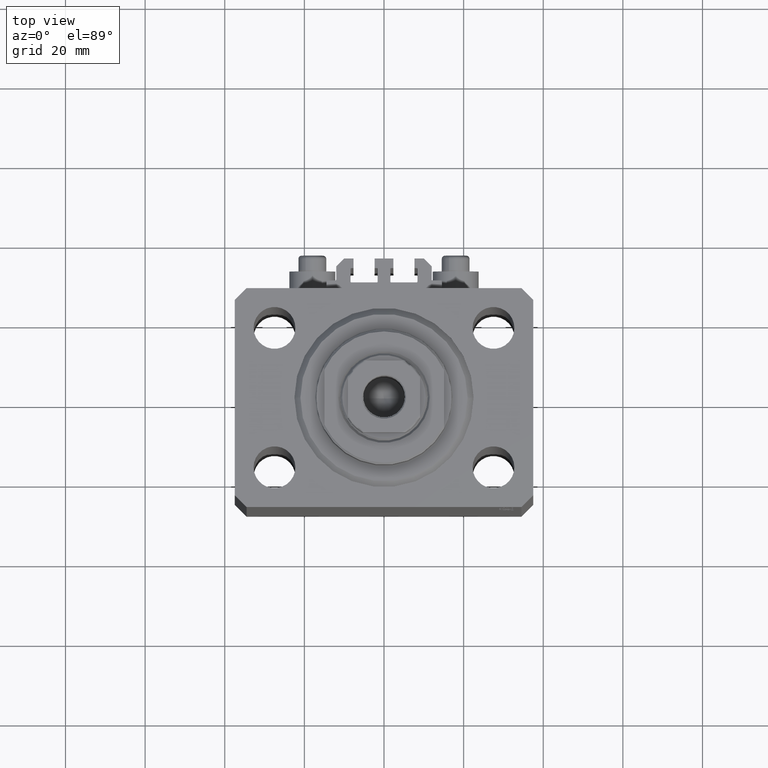
[diagram: clean part render]
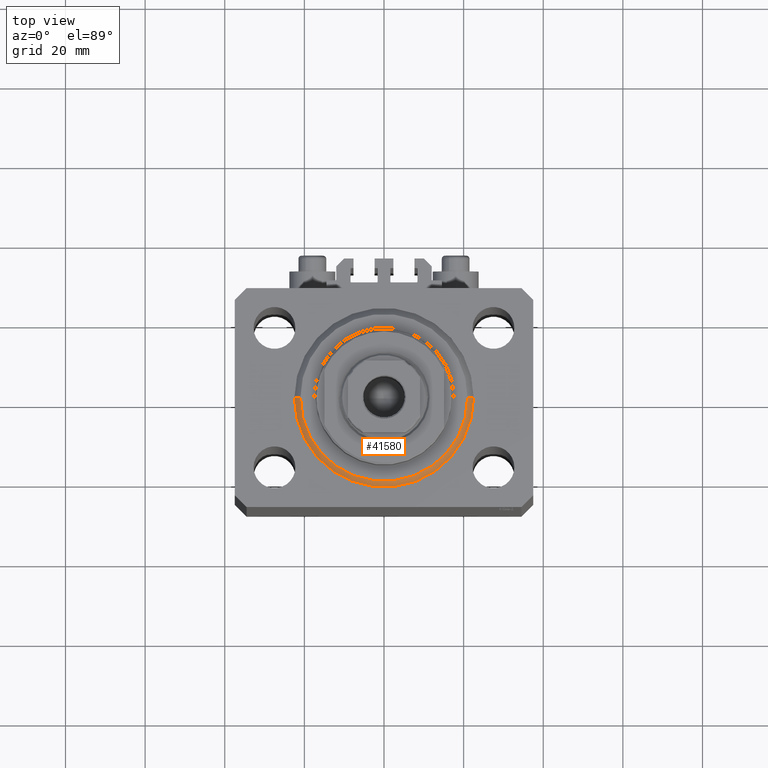
[diagram: same view with one face highlighted and labeled with its STEP entity id]
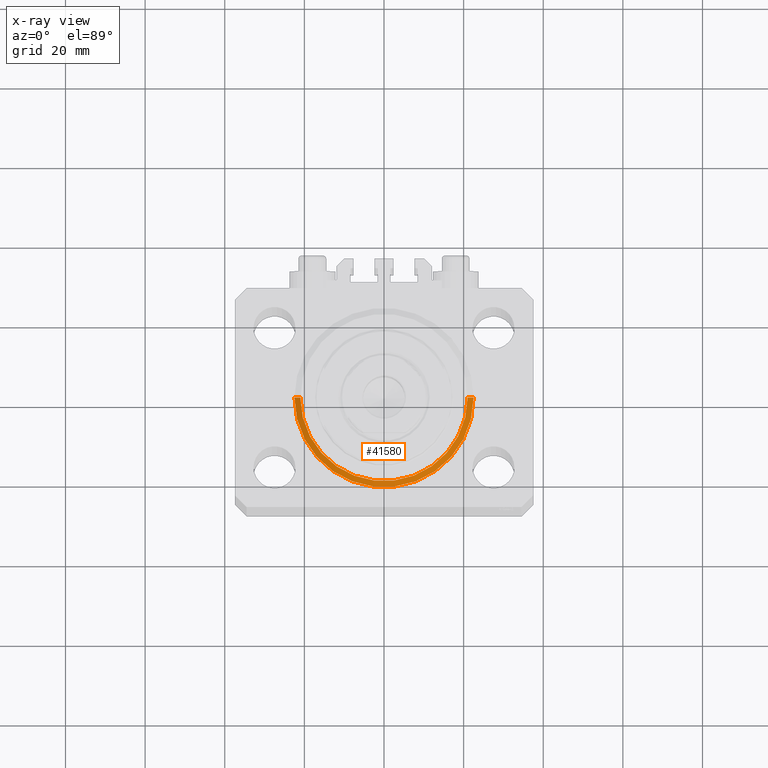
[diagram: x-ray of the same camera — body ghosted, the highlighted face saturated]
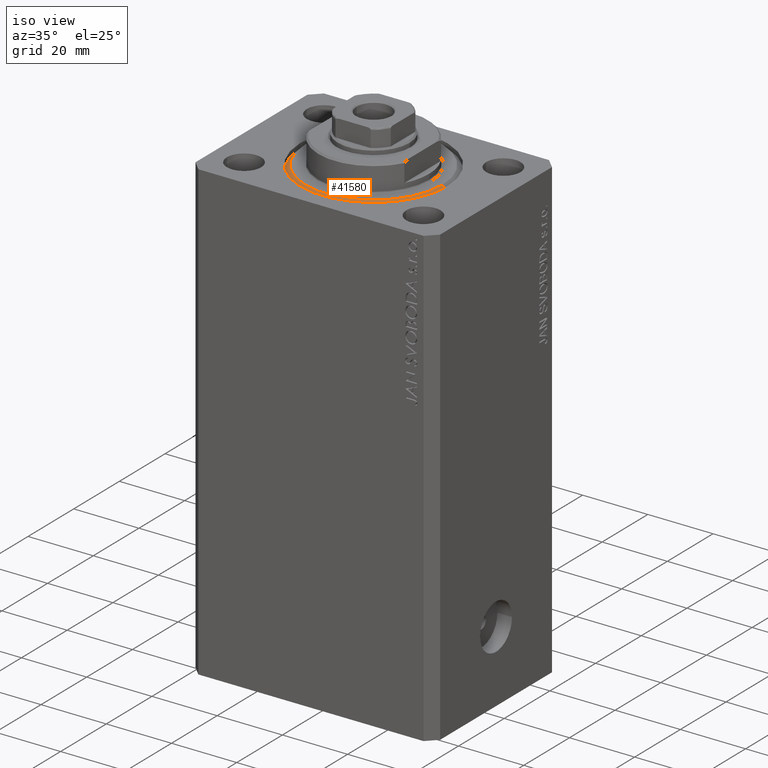
[diagram: same view with one face highlighted and labeled with its STEP entity id]
A machine part, top view. The second image highlights one B-rep face of the part: STEP entity #41580.
The next image is the same camera in x-ray: the body ghosted, the highlighted face saturated — about 0% of this face is hidden behind the body in this view.
A second angle (iso view) of the same face is appended — the face is thin or edge-on in the first view.
In plain terms, the highlighted conical surface has half-angle 45 deg.
Its self-contained STEP definition (entity closure, byte-faithful):
#1320 = DIRECTION ( 'NONE',  ( 1.000000000000000000, 0.000000000000000000, 0.000000000000000000 ) ) ;
#3336 = CONICAL_SURFACE ( 'NONE', #42283, 22.50000000000000355, 0.7853981633974517207 ) ;
#3795 = DIRECTION ( 'NONE',  ( 1.000000000000000000, 0.000000000000000000, 0.000000000000000000 ) ) ;
#4356 = LINE ( 'NONE', #25870, #23479 ) ;
#5051 = CARTESIAN_POINT ( 'NONE',  ( 0.000000000000000000, 0.000000000000000000, 0.000000000000000000 ) ) ;
#6903 = FACE_OUTER_BOUND ( 'NONE', #20614, .T. ) ;
#7612 = DIRECTION ( 'NONE',  ( -0.000000000000000000, -0.000000000000000000, 1.000000000000000000 ) ) ;
#8411 = ORIENTED_EDGE ( 'NONE', *, *, #34706, .F. ) ;
#8512 = CIRCLE ( 'NONE', #19206, 20.99999999999998934 ) ;
#8810 = CARTESIAN_POINT ( 'NONE',  ( 20.99999999999998934, 0.000000000000000000, 0.000000000000000000 ) ) ;
#8814 = ORIENTED_EDGE ( 'NONE', *, *, #11351, .T. ) ;
#11351 = EDGE_CURVE ( 'NONE', #11660, #11547, #4356, .T. ) ;
#11547 = VERTEX_POINT ( 'NONE', #28205 ) ;
#11660 = VERTEX_POINT ( 'NONE', #8810 ) ;
#12575 = LINE ( 'NONE', #41036, #32153 ) ;
#12853 = CARTESIAN_POINT ( 'NONE',  ( -20.99999999999998934, 2.663606788145492628E-15, 0.000000000000000000 ) ) ;
#15012 = VERTEX_POINT ( 'NONE', #12853 ) ;
#19206 = AXIS2_PLACEMENT_3D ( 'NONE', #5051, #41864, #34212 ) ;
#19731 = CARTESIAN_POINT ( 'NONE',  ( 0.000000000000000000, 0.000000000000000000, 1.500000000000001332 ) ) ;
#20614 = EDGE_LOOP ( 'NONE', ( #8411, #34117, #8814, #21274 ) ) ;
#21274 = ORIENTED_EDGE ( 'NONE', *, *, #28821, .F. ) ;
#23479 = VECTOR ( 'NONE', #40457, 1000.000000000000114 ) ;
#25862 = AXIS2_PLACEMENT_3D ( 'NONE', #19731, #26660, #1320 ) ;
#25870 = CARTESIAN_POINT ( 'NONE',  ( 22.50000000000000355, 0.000000000000000000, 1.500000000000001332 ) ) ;
#26660 = DIRECTION ( 'NONE',  ( -0.000000000000000000, -0.000000000000000000, 1.000000000000000000 ) ) ;
#27157 = DIRECTION ( 'NONE',  ( -0.7071067811865500152, 8.659560562354963673E-17, 0.7071067811865451302 ) ) ;
#28205 = CARTESIAN_POINT ( 'NONE',  ( 22.50000000000000355, 2.755455298081545172E-15, 1.500000000000001332 ) ) ;
#28821 = EDGE_CURVE ( 'NONE', #40518, #11547, #43450, .T. ) ;
#32153 = VECTOR ( 'NONE', #27157, 1000.000000000000114 ) ;
#34117 = ORIENTED_EDGE ( 'NONE', *, *, #35340, .F. ) ;
#34212 = DIRECTION ( 'NONE',  ( 1.000000000000000000, 0.000000000000000000, 0.000000000000000000 ) ) ;
#34706 = EDGE_CURVE ( 'NONE', #15012, #40518, #12575, .T. ) ;
#35340 = EDGE_CURVE ( 'NONE', #11660, #15012, #8512, .T. ) ;
#38239 = CARTESIAN_POINT ( 'NONE',  ( -22.50000000000000355, 0.000000000000000000, 1.500000000000001332 ) ) ;
#40457 = DIRECTION ( 'NONE',  ( 0.7071067811865500152, 0.000000000000000000, 0.7071067811865451302 ) ) ;
#40518 = VERTEX_POINT ( 'NONE', #38239 ) ;
#41036 = CARTESIAN_POINT ( 'NONE',  ( -22.50000000000000355, 2.755455298081545172E-15, 1.500000000000001332 ) ) ;
#41580 = ADVANCED_FACE ( 'NONE', ( #6903 ), #3336, .T. ) ;
#41864 = DIRECTION ( 'NONE',  ( -0.000000000000000000, -0.000000000000000000, -1.000000000000000000 ) ) ;
#42283 = AXIS2_PLACEMENT_3D ( 'NONE', #43248, #7612, #3795 ) ;
#43248 = CARTESIAN_POINT ( 'NONE',  ( 0.000000000000000000, 0.000000000000000000, 1.500000000000001332 ) ) ;
#43450 = CIRCLE ( 'NONE', #25862, 22.50000000000000355 ) ;